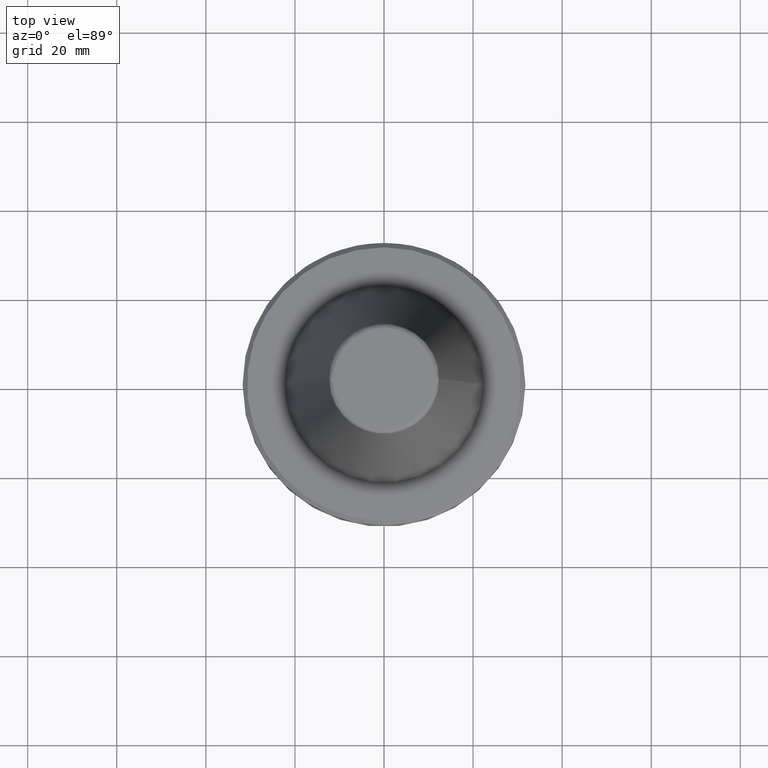
[diagram: clean part render]
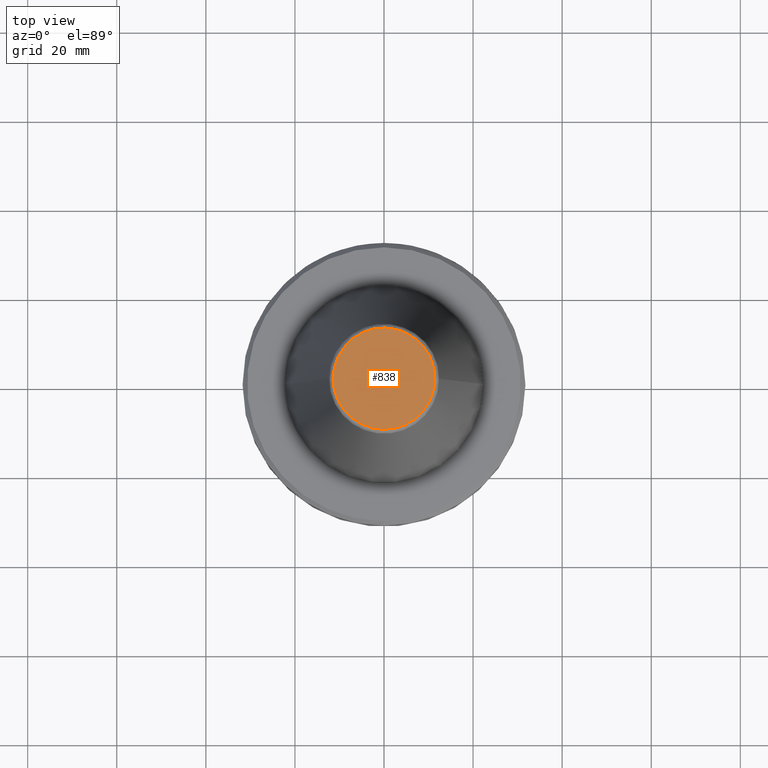
[diagram: same view with one face highlighted and labeled with its STEP entity id]
A machine part, top view. The second image highlights one B-rep face of the part: STEP entity #838.
In plain terms, the highlighted planar face has unit normal (0, 0, 1).
Its self-contained STEP definition (entity closure, byte-faithful):
#9 = VERTEX_POINT ( 'NONE', #450 ) ;
#12 = ORIENTED_EDGE ( 'NONE', *, *, #1204, .F. ) ;
#216 = AXIS2_PLACEMENT_3D ( 'NONE', #1020, #600, #1044 ) ;
#231 = CARTESIAN_POINT ( 'NONE',  ( -11.38516258738788200, 0.0000000000000000000, 68.39999999982889300 ) ) ;
#256 = VERTEX_POINT ( 'NONE', #1356 ) ;
#268 = EDGE_CURVE ( 'NONE', #9, #256, #724, .T. ) ;
#288 = ORIENTED_EDGE ( 'NONE', *, *, #268, .F. ) ;
#368 = PLANE ( 'NONE',  #216 ) ;
#392 = EDGE_LOOP ( 'NONE', ( #288, #12 ) ) ;
#450 = CARTESIAN_POINT ( 'NONE',  ( -11.38516258738788200, 0.0000000000000000000, 68.39999999982889300 ) ) ;
#600 = DIRECTION ( 'NONE',  ( 0.0000000000000000000, 0.0000000000000000000, 1.000000000000000000 ) ) ;
#724 =( BOUNDED_CURVE ( )  B_SPLINE_CURVE ( 3, ( #1353, #1003, #776, #774 ),
 .UNSPECIFIED., .F., .F. ) 
 B_SPLINE_CURVE_WITH_KNOTS ( ( 4, 4 ),
 ( 0.0000000000000000000, 1.000000000000000000 ),
 .UNSPECIFIED. ) 
 CURVE ( )  GEOMETRIC_REPRESENTATION_ITEM ( )  RATIONAL_B_SPLINE_CURVE ( ( 0.9606698264625278500, 0.3202232754875091200, 0.3202232754875091200, 0.9606698264625278500 ) ) 
 REPRESENTATION_ITEM ( '' )  );
#774 = CARTESIAN_POINT ( 'NONE',  ( 11.38516258738787800, 0.0000000000000000000, 68.39999999982889300 ) ) ;
#776 = CARTESIAN_POINT ( 'NONE',  ( 11.38516258736446900, 22.77032517488440200, 68.39999999971480800 ) ) ;
#838 = ADVANCED_FACE ( 'NONE', ( #918 ), #368, .T. ) ;
#918 = FACE_OUTER_BOUND ( 'NONE', #392, .T. ) ;
#1003 = CARTESIAN_POINT ( 'NONE',  ( -11.38516258736446900, 22.77032517488440200, 68.39999999971480800 ) ) ;
#1008 = CARTESIAN_POINT ( 'NONE',  ( 11.38516258736446900, -22.77032517488440200, 68.39999999971479400 ) ) ;
#1020 = CARTESIAN_POINT ( 'NONE',  ( -11.52178454100000100, -11.52178454100000100, 68.40000000000000600 ) ) ;
#1044 = DIRECTION ( 'NONE',  ( 1.000000000000000000, 0.0000000000000000000, -0.0000000000000000000 ) ) ;
#1204 = EDGE_CURVE ( 'NONE', #256, #9, #1304, .T. ) ;
#1304 =( BOUNDED_CURVE ( )  B_SPLINE_CURVE ( 3, ( #1377, #1008, #1354, #231 ),
 .UNSPECIFIED., .F., .T. ) 
 B_SPLINE_CURVE_WITH_KNOTS ( ( 4, 4 ),
 ( 0.0000000000000000000, 1.000000000000000000 ),
 .UNSPECIFIED. ) 
 CURVE ( )  GEOMETRIC_REPRESENTATION_ITEM ( )  RATIONAL_B_SPLINE_CURVE ( ( 0.9606698264625276300, 0.3202232754875091200, 0.3202232754875091200, 0.9606698264625276300 ) ) 
 REPRESENTATION_ITEM ( '' )  );
#1353 = CARTESIAN_POINT ( 'NONE',  ( -11.38516258738788200, 0.0000000000000000000, 68.39999999982889300 ) ) ;
#1354 = CARTESIAN_POINT ( 'NONE',  ( -11.38516258736446900, -22.77032517488440200, 68.39999999971479400 ) ) ;
#1356 = CARTESIAN_POINT ( 'NONE',  ( 11.38516258738787800, 0.0000000000000000000, 68.39999999982889300 ) ) ;
#1377 = CARTESIAN_POINT ( 'NONE',  ( 11.38516258738787800, 0.0000000000000000000, 68.39999999982889300 ) ) ;